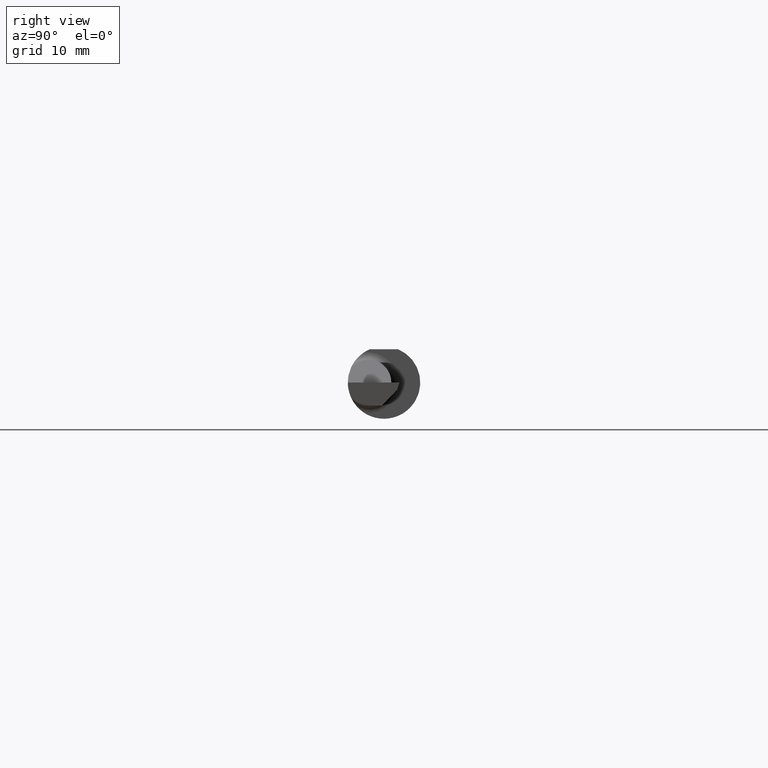
[diagram: clean part render]
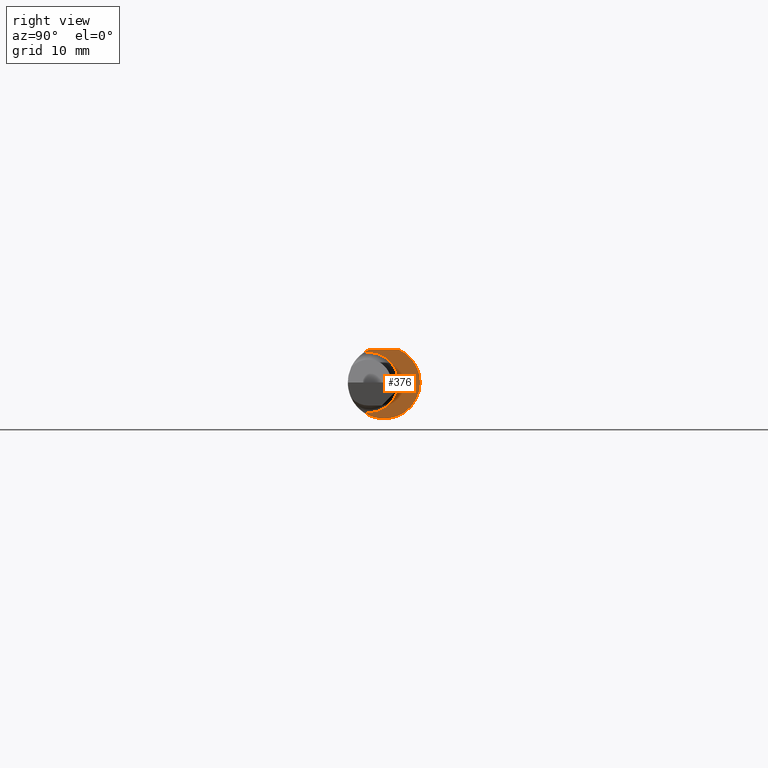
[diagram: same view with one face highlighted and labeled with its STEP entity id]
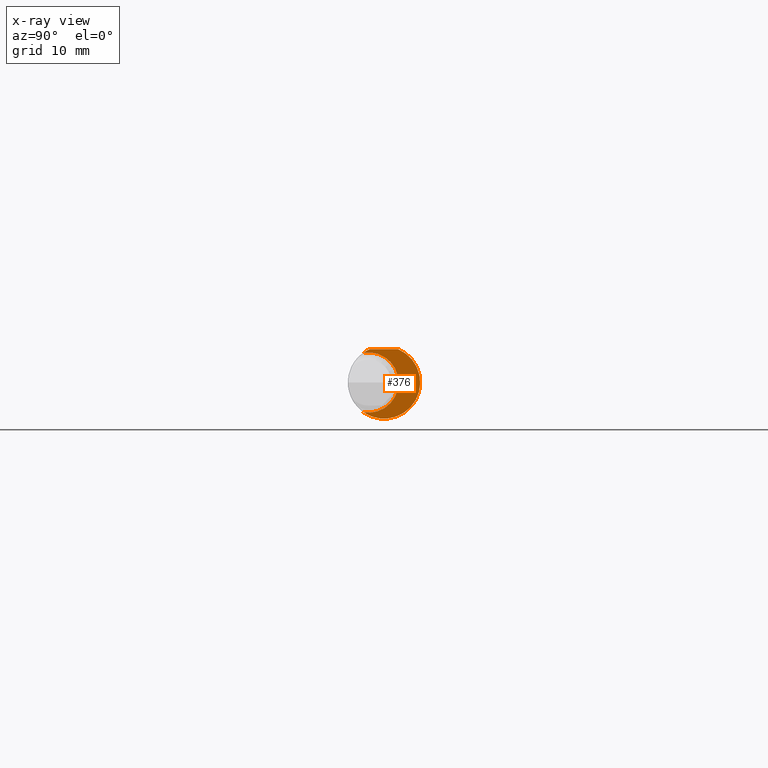
[diagram: x-ray of the same camera — body ghosted, the highlighted face saturated]
A machine part, right view. The second image highlights one B-rep face of the part: STEP entity #376.
The next image is the same camera in x-ray: the body ghosted, the highlighted face saturated — about 0% of this face is hidden behind the body in this view.
In plain terms, the highlighted planar face has unit normal (1, -0, 0).
Its self-contained STEP definition (entity closure, byte-faithful):
#2 = CARTESIAN_POINT ( 'NONE',  ( 1.709999999999999964, 0.04895916665957456004, 0.1148500000000000076 ) ) ;
#25 = LINE ( 'NONE', #136, #575 ) ;
#31 = DIRECTION ( 'NONE',  ( 0.0000000000000000000, -1.000000000000000000, 0.0000000000000000000 ) ) ;
#37 = ORIENTED_EDGE ( 'NONE', *, *, #593, .T. ) ;
#43 = VERTEX_POINT ( 'NONE', #2 ) ;
#46 = DIRECTION ( 'NONE',  ( 1.000000000000000000, -3.414809992080329023E-18, 0.0000000000000000000 ) ) ;
#47 = DIRECTION ( 'NONE',  ( 3.414809992080329023E-18, 1.000000000000000000, 0.0000000000000000000 ) ) ;
#48 = AXIS2_PLACEMENT_3D ( 'NONE', #74, #520, #31 ) ;
#64 = ORIENTED_EDGE ( 'NONE', *, *, #161, .T. ) ;
#74 = CARTESIAN_POINT ( 'NONE',  ( 1.709999999999999964, -0.05399999999999999939, 0.0000000000000000000 ) ) ;
#88 = CIRCLE ( 'NONE', #451, 0.1248500000000000026 ) ;
#90 = VERTEX_POINT ( 'NONE', #138 ) ;
#131 = EDGE_CURVE ( 'NONE', #90, #43, #583, .T. ) ;
#136 = CARTESIAN_POINT ( 'NONE',  ( 1.709999999999999964, 0.1748500000000000054, 0.1148500000000000076 ) ) ;
#138 = CARTESIAN_POINT ( 'NONE',  ( 1.709999999999999964, -0.07089166666666683880, -0.1027710761704002107 ) ) ;
#139 = DIRECTION ( 'NONE',  ( 1.000000000000000000, -3.414809992080329023E-18, 0.0000000000000000000 ) ) ;
#161 = EDGE_CURVE ( 'NONE', #472, #90, #470, .T. ) ;
#204 = FACE_OUTER_BOUND ( 'NONE', #521, .T. ) ;
#269 = PLANE ( 'NONE',  #352 ) ;
#280 = CARTESIAN_POINT ( 'NONE',  ( 1.709999999999999964, 0.05014999999999992381, 0.0000000000000000000 ) ) ;
#337 = DIRECTION ( 'NONE',  ( 1.000000000000000000, -3.414809992080329023E-18, 0.0000000000000000000 ) ) ;
#352 = AXIS2_PLACEMENT_3D ( 'NONE', #280, #139, #47 ) ;
#376 = ADVANCED_FACE ( 'NONE', ( #204 ), #269, .T. ) ;
#380 = EDGE_CURVE ( 'NONE', #43, #489, #25, .T. ) ;
#403 = DIRECTION ( 'NONE',  ( 0.0000000000000000000, 1.000000000000000000, 0.0000000000000000000 ) ) ;
#430 = CARTESIAN_POINT ( 'NONE',  ( 1.709999999999999964, 0.0000000000000000000, 0.0000000000000000000 ) ) ;
#451 = AXIS2_PLACEMENT_3D ( 'NONE', #430, #337, #468 ) ;
#468 = DIRECTION ( 'NONE',  ( 0.0000000000000000000, 1.000000000000000000, 0.0000000000000000000 ) ) ;
#470 = CIRCLE ( 'NONE', #48, 0.1041499999999999371 ) ;
#471 = ORIENTED_EDGE ( 'NONE', *, *, #380, .T. ) ;
#472 = VERTEX_POINT ( 'NONE', #509 ) ;
#474 = AXIS2_PLACEMENT_3D ( 'NONE', #502, #46, #403 ) ;
#489 = VERTEX_POINT ( 'NONE', #556 ) ;
#498 = ORIENTED_EDGE ( 'NONE', *, *, #131, .T. ) ;
#502 = CARTESIAN_POINT ( 'NONE',  ( 1.709999999999999964, 0.0000000000000000000, 0.0000000000000000000 ) ) ;
#509 = CARTESIAN_POINT ( 'NONE',  ( 1.709999999999999964, -0.07089166666666683880, 0.1027710761704002107 ) ) ;
#520 = DIRECTION ( 'NONE',  ( -1.000000000000000000, 3.414809992080329023E-18, -0.0000000000000000000 ) ) ;
#521 = EDGE_LOOP ( 'NONE', ( #498, #471, #37, #64 ) ) ;
#551 = DIRECTION ( 'NONE',  ( -3.414809992080329023E-18, -1.000000000000000000, 4.882484975808304553E-17 ) ) ;
#556 = CARTESIAN_POINT ( 'NONE',  ( 1.709999999999999964, -0.04895916665957457392, 0.1148500000000000215 ) ) ;
#575 = VECTOR ( 'NONE', #551, 39.37007874015748143 ) ;
#583 = CIRCLE ( 'NONE', #474, 0.1248500000000000026 ) ;
#593 = EDGE_CURVE ( 'NONE', #489, #472, #88, .T. ) ;